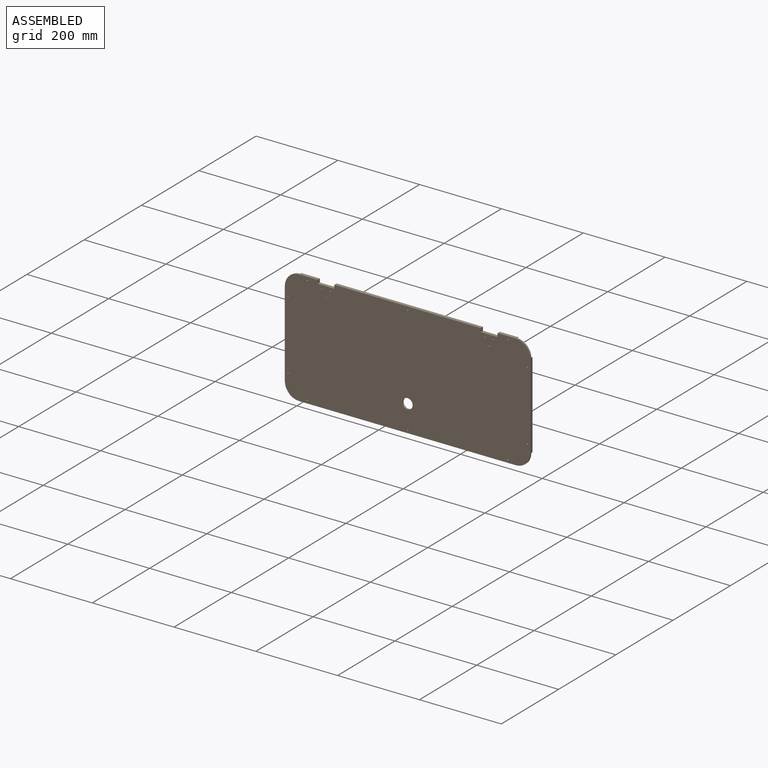
[diagram: assembled view]
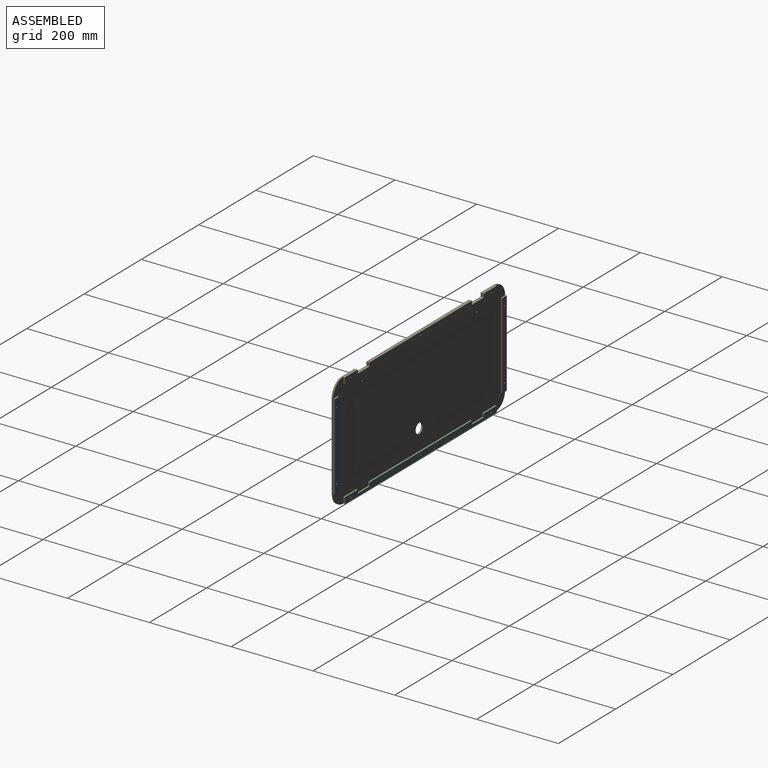
[diagram: assembled view, second angle]
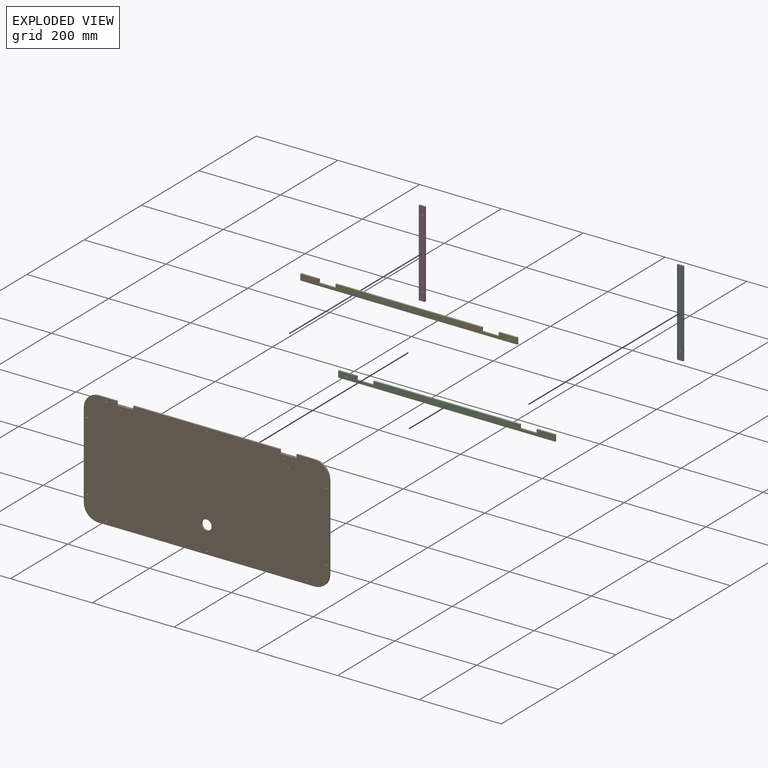
[diagram: exploded view]
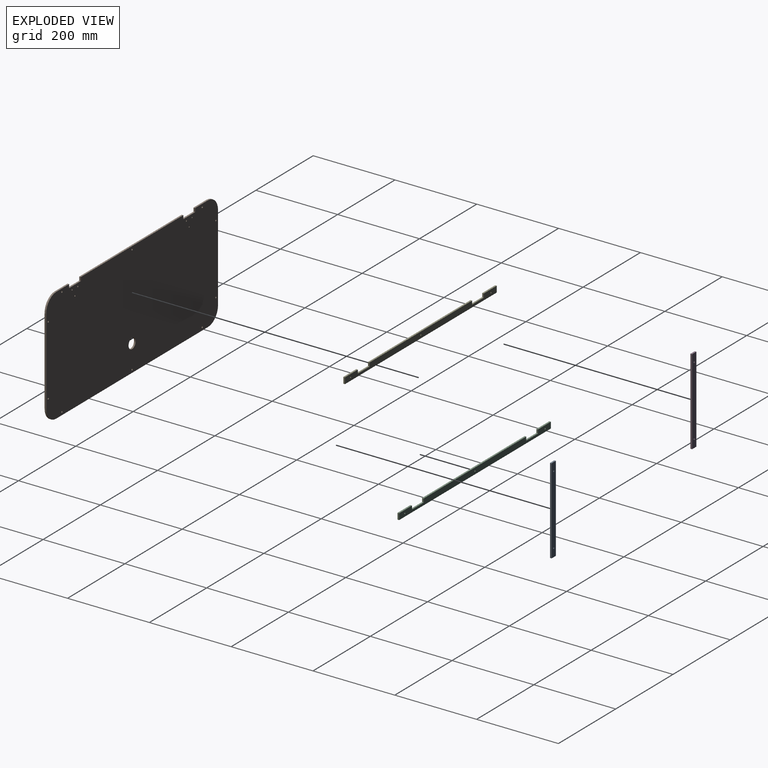
[diagram: exploded view, second angle]
ASSEMBLY  parts=5 mates=5
PART A: 8 faces, bbox 210x4x15 mm
  f0: plane 15x4mm, normal (-1,0,0), area 60mm2, adj f1,f4,f6,f7
  f1: plane 210x4mm, normal (0,0,-1), area 840mm2, adj f0,f2,f6,f7
  f2: plane 15x4mm, normal (1,0,0), area 60mm2, adj f1,f4,f6,f7
  f3: cylinder r=1.65mm len=4mm, axis (0,1,0), area 41.5mm2, adj f6,f7
  f4: plane 210x4mm, normal (0,0,1), area 840mm2, adj f0,f2,f6,f7
  f5: cylinder r=1.65mm len=4mm, axis (0,1,0), area 41.5mm2, adj f6,f7
  f6: plane 210x15mm, normal (0,-1,0), area 3132.9mm2, adj f0,f1,f2,f3,f4,f5
  f7: plane 210x15mm, normal (0,1,0), area 3132.9mm2, adj f0,f1,f2,f3,f4,f5
PART B: 35 faces, bbox 600x4x280 mm
  f0: plane 45x4mm, normal (0,0,1), area 180mm2, adj f1,f31,f33,f34
  f1: plane 8.8x4mm, normal (-1,0,0), area 35.2mm2, adj f0,f2,f33,f34
  f2: plane 41x4mm, normal (0,0,1), area 164mm2, adj f1,f3,f33,f34
  f3: plane 8.8x4mm, normal (1,0,0), area 35.2mm2, adj f2,f4,f33,f34
  f4: plane 358x4mm, normal (0,0,1), area 1432mm2, adj f3,f5,f33,f34
  f5: plane 8.8x4mm, normal (-1,0,0), area 35.2mm2, adj f4,f6,f33,f34
  f6: plane 41x4mm, normal (0,0,1), area 164mm2, adj f5,f7,f33,f34
  f7: plane 8.8x4mm, normal (1,0,0), area 35.2mm2, adj f6,f8,f33,f34
  f8: plane 45x4mm, normal (0,0,1), area 180mm2, adj f7,f9,f33,f34
  f9: cylinder r=35mm len=35mm, axis (0,1,0), area 219.9mm2, adj f8,f10,f33,f34
  f10: plane 210x4mm, normal (-1,0,0), area 840mm2, adj f9,f11,f33,f34
  f11: cylinder r=35mm len=35mm, axis (0,1,0), area 219.9mm2, adj f10,f12,f33,f34
  f12: plane 530x4mm, normal (0,0,-1), area 2120mm2, adj f11,f13,f33,f34
  f13: cylinder r=35mm len=35mm, axis (0,1,0), area 219.9mm2, adj f12,f14,f33,f34
  f14: plane 210x4mm, normal (1,0,0), area 840mm2, adj f13,f31,f33,f34
  f15: cylinder r=1.5mm len=4mm, axis (0,1,0), area 37.7mm2, adj f33,f34
  f16: cylinder r=1.65mm len=4mm, axis (0,1,0), area 41.5mm2, adj f33,f34
  f17: cylinder r=1.65mm len=4mm, axis (0,1,0), area 41.5mm2, adj f33,f34
  f18: cylinder r=1.65mm len=4mm, axis (0,1,0), area 41.5mm2, adj f33,f34
  f19: cylinder r=1.65mm len=4mm, axis (0,1,0), area 41.5mm2, adj f33,f34
  f20: cylinder r=2mm len=4mm, axis (0,1,0), area 50.3mm2, adj f33,f34
  f21: cylinder r=2mm len=4mm, axis (0,1,0), area 50.3mm2, adj f33,f34
  f22: cylinder r=2mm len=4mm, axis (0,1,0), area 50.3mm2, adj f33,f34
  f23: cylinder r=2mm len=4mm, axis (0,1,0), area 50.3mm2, adj f33,f34
  f24: cylinder r=2mm len=4mm, axis (0,1,0), area 50.3mm2, adj f33,f34
  f25: cylinder r=2mm len=4mm, axis (0,1,0), area 50.3mm2, adj f33,f34
  f26: cylinder r=2mm len=4mm, axis (0,1,0), area 50.3mm2, adj f33,f34
  f27: cylinder r=2mm len=4mm, axis (0,1,0), area 50.3mm2, adj f33,f34
  f28: cylinder r=2mm len=4mm, axis (0,1,0), area 50.3mm2, adj f33,f34
  f29: cylinder r=2mm len=4mm, axis (0,1,0), area 50.3mm2, adj f33,f34
  f30: cylinder r=12.5mm len=25mm, axis (0,1,0), area 314.2mm2, adj f33,f34
  f31: cylinder r=35mm len=35mm, axis (0,1,0), area 219.9mm2, adj f0,f14,f33,f34
  f32: cylinder r=1.5mm len=4mm, axis (0,1,0), area 37.7mm2, adj f33,f34
  f33: plane 600x280mm, normal (0,-1,0), area 165562mm2, adj f0,f1,f2,f3,f4,f5,f6,f7
  f34: plane 600x280mm, normal (0,1,0), area 165562mm2, adj f0,f1,f2,f3,f4,f5,f6,f7
PART C: 17 faces, bbox 530x4x15 mm
  f0: plane 45x4mm, normal (0,0,1), area 180mm2, adj f1,f13,f15,f16
  f1: plane 8.8x4mm, normal (-1,0,0), area 35.2mm2, adj f0,f2,f15,f16
  f2: plane 41x4mm, normal (0,0,1), area 164mm2, adj f1,f3,f15,f16
  f3: plane 8.8x4mm, normal (1,0,0), area 35.2mm2, adj f2,f4,f15,f16
  f4: plane 358x4mm, normal (0,0,1), area 1432mm2, adj f3,f5,f15,f16
  f5: plane 8.8x4mm, normal (-1,0,0), area 35.2mm2, adj f4,f6,f15,f16
  f6: plane 41x4mm, normal (0,0,1), area 164mm2, adj f5,f7,f15,f16
  f7: plane 8.8x4mm, normal (1,0,0), area 35.2mm2, adj f6,f8,f15,f16
  f8: plane 45x4mm, normal (0,0,1), area 180mm2, adj f7,f9,f15,f16
  f9: plane 15x4mm, normal (-1,0,0), area 60mm2, adj f8,f10,f15,f16
  f10: plane 530x4mm, normal (0,0,-1), area 2120mm2, adj f9,f13,f15,f16
  f11: cylinder r=1.65mm len=4mm, axis (0,1,0), area 41.5mm2, adj f15,f16
  f12: cylinder r=1.65mm len=4mm, axis (0,1,0), area 41.5mm2, adj f15,f16
  f13: plane 15x4mm, normal (1,0,0), area 60mm2, adj f0,f10,f15,f16
  f14: cylinder r=1.65mm len=4mm, axis (0,1,0), area 41.5mm2, adj f15,f16
  f15: plane 530x15mm, normal (0,-1,0), area 7202.7mm2, adj f0,f1,f2,f3,f4,f5,f6,f7
  f16: plane 530x15mm, normal (0,1,0), area 7202.7mm2, adj f0,f1,f2,f3,f4,f5,f6,f7
PART D: same geometry as A
PART E: same geometry as C
PLACE A rot(axis=(0,-1,0),90deg) t=(368.25,11.37,-349.83)mm
PLACE B rot(axis=(0.66,0,0.75),0deg) t=(-1.38,7.37,-202.47)mm
PLACE C rot(axis=(0.96,0,0.26),0deg) t=(-196.75,11.37,-384.83)mm
PLACE D rot(axis=(0,-1,0),90deg) t=(-216.75,11.37,-349.83)mm
PLACE E rot(axis=(0.68,0,0.74),0deg) t=(-196.75,11.37,-119.83)mm
MATE cylindrical B.f29 <-> D.f5  axis (0,1,0) through (-224.25,7.37,-159.83)mm
MATE fastened E.f12 <-> B.f22  axis (0,-1,0) through (-176.75,7.37,-112.33)mm
MATE fastened C.f12 <-> B.f25  axis (0,-1,0) through (-176.75,7.37,-377.33)mm
MATE fastened A.f5 <-> B.f26  axis (0,1,0) through (360.75,11.37,-159.83)mm
MATE fastened D.f3 <-> B.f28  axis (0,-1,0) through (-224.25,7.37,-329.83)mm
